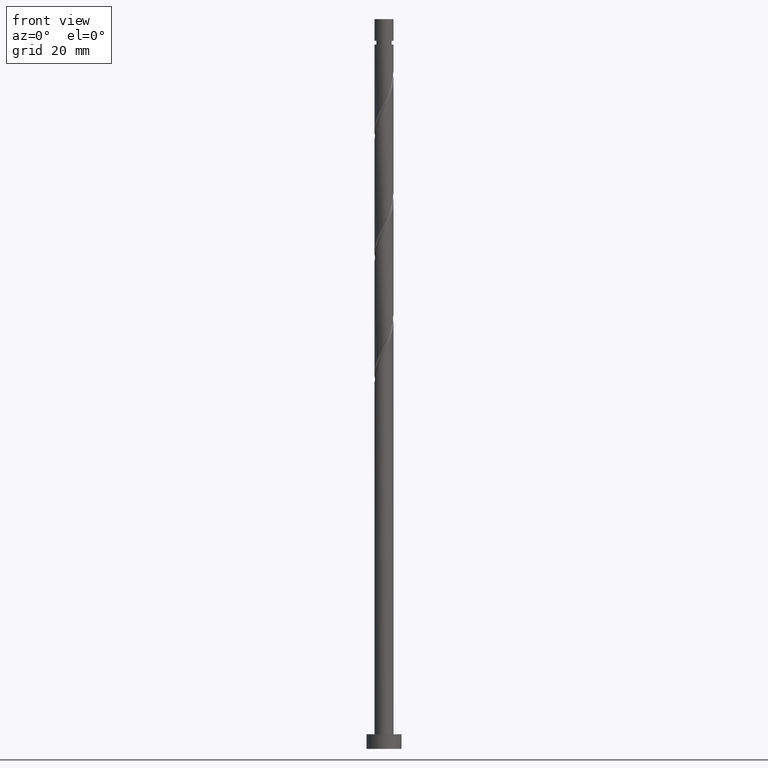
[diagram: clean part render]
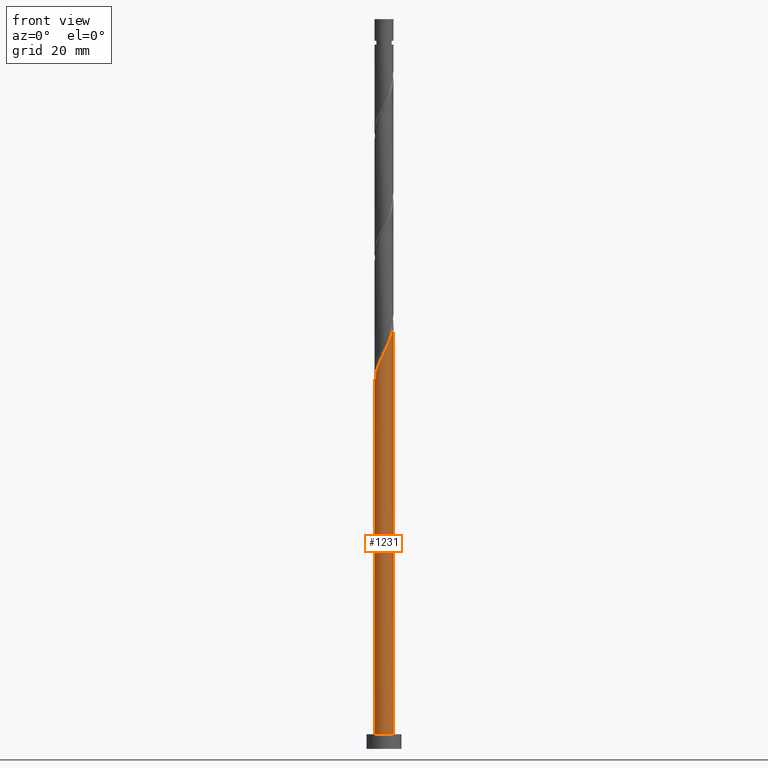
[diagram: same view with one face highlighted and labeled with its STEP entity id]
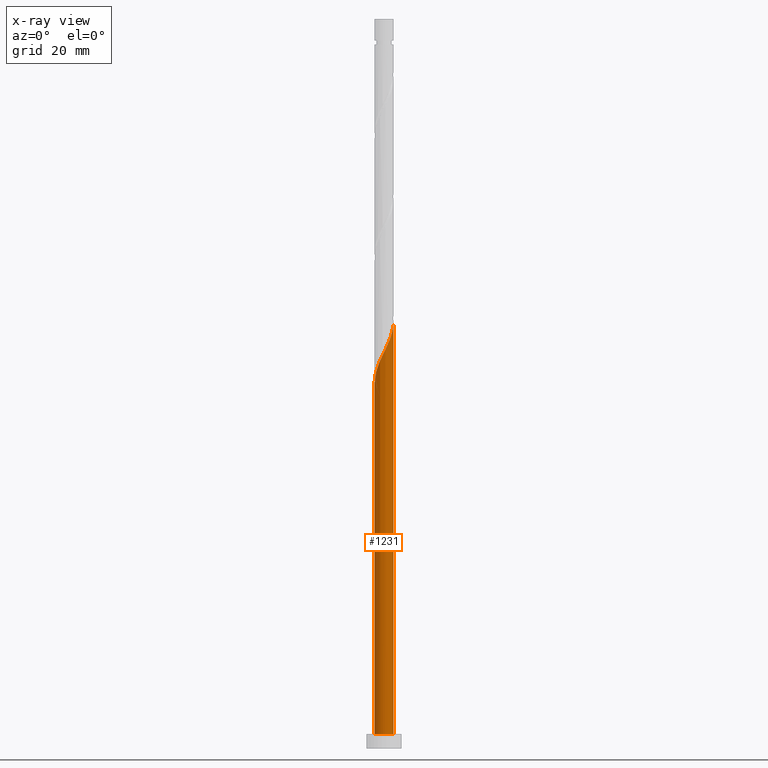
[diagram: x-ray of the same camera — body ghosted, the highlighted face saturated]
A machine part, front view. The second image highlights one B-rep face of the part: STEP entity #1231.
The next image is the same camera in x-ray: the body ghosted, the highlighted face saturated — about 0% of this face is hidden behind the body in this view.
In plain terms, the highlighted cylindrical surface (edge-blend (fillet) strip) has radius 3.25 mm, axis along (-0, -0, -1).
Its self-contained STEP definition (entity closure, byte-faithful):
#21 = CARTESIAN_POINT ( 'NONE',  ( -3.250000000000004441, -2.318170472659416436E-15, 125.3585834308545088 ) ) ;
#32 = CARTESIAN_POINT ( 'NONE',  ( 2.596138880627126166, -1.955137568688240179, 141.9108642811054040 ) ) ;
#35 = EDGE_LOOP ( 'NONE', ( #1417, #638, #1752, #1036 ) ) ;
#41 = CARTESIAN_POINT ( 'NONE',  ( 3.250000000000000444, 3.980102097228898231E-16, 250.0000000000000000 ) ) ;
#97 = CARTESIAN_POINT ( 'NONE',  ( -3.083821650335326847, -1.025935684593890285, 127.4877873580284557 ) ) ;
#115 = CARTESIAN_POINT ( 'NONE',  ( -3.250000000000004441, -2.318170472659416436E-15, 125.3585834308545088 ) ) ;
#125 = CARTESIAN_POINT ( 'NONE',  ( -0.9074818488964577767, -3.120733358350805897, 133.8980437682849072 ) ) ;
#135 = CARTESIAN_POINT ( 'NONE',  ( -1.286407482375277800, -3.010545112519593669, 133.0967617170028348 ) ) ;
#137 =( BOUNDED_CURVE ( )  B_SPLINE_CURVE ( 2, ( #21, #592, #1147, #1366, #97, #1477, #667, #1805, #1650, #1340, #1078, #135, #125, #699, #1679, #277, #157, #1838, #1688, #447, #1731, #1054, #32, #1441, #185, #754, #350, #1308, #176 ),
 .UNSPECIFIED., .F., .T. ) 
 B_SPLINE_CURVE_WITH_KNOTS ( ( 3, 2, 2, 2, 2, 2, 2, 2, 2, 2, 2, 2, 2, 2, 3 ),
 ( 0.05452716259738314003, 0.05769230769230770939, 0.06730769230769229061, 0.07692307692307687184, 0.08653846153846156408, 0.09615384615384614531, 0.1057692307692307265, 0.1153846153846154188, 0.1250000000000000000, 0.1346153846153845812, 0.1442307692307692735, 0.1538461538461538547, 0.1634615384615384359, 0.1730769230769231282, 0.1795271625973832719 ),
 .UNSPECIFIED. ) 
 CURVE ( )  GEOMETRIC_REPRESENTATION_ITEM ( )  RATIONAL_B_SPLINE_CURVE ( ( 0.9061636035682909540, 0.9069090390690794923, 0.9090909090909361501, 0.9024626128164395800, 0.9090909090909361501, 0.9024626128164395800, 0.9090909090909361501, 0.9024626128164395800, 0.9090909090909361501, 0.9024626128164395800, 0.9090909090909361501, 0.9024626128164395800, 0.9090909090909361501, 0.9024626128164395800, 0.9090909090909361501, 0.9024626128164395800, 0.9090909090909361501, 0.9024626128164395800, 0.9090909090909361501, 0.9024626128164395800, 0.9090909090909361501, 0.9024626128164395800, 0.9090909090909361501, 0.9024626128164395800, 0.9090909090909361501, 0.9024626128164395800, 0.9090909090909361501, 0.9046444828382962378, 0.9061636035682908430 ) ) 
 REPRESENTATION_ITEM ( '' )  );
#157 = CARTESIAN_POINT ( 'NONE',  ( 0.6467418341193050813, -3.185000000000004050, 137.1031719734130547 ) ) ;
#176 = CARTESIAN_POINT ( 'NONE',  ( 3.250000000000004885, 1.869492316660819541E-15, 146.1919167641878516 ) ) ;
#185 = CARTESIAN_POINT ( 'NONE',  ( 2.988594849070724813, -1.277028123460074438, 143.5134283836694635 ) ) ;
#234 = AXIS2_PLACEMENT_3D ( 'NONE', #428, #404, #1535 ) ;
#243 = VERTEX_POINT ( 'NONE', #455 ) ;
#277 = CARTESIAN_POINT ( 'NONE',  ( 0.2600128175564035971, -3.263528676131572936, 136.3018899221310107 ) ) ;
#288 = DIRECTION ( 'NONE',  ( -0.000000000000000000, -0.000000000000000000, -1.000000000000000000 ) ) ;
#350 = CARTESIAN_POINT ( 'NONE',  ( 3.207364547986609082, -0.5247024455047716307, 145.1159924862336368 ) ) ;
#404 = DIRECTION ( 'NONE',  ( -0.000000000000000000, -0.000000000000000000, -1.000000000000000000 ) ) ;
#428 = CARTESIAN_POINT ( 'NONE',  ( 0.000000000000000000, 0.000000000000000000, 250.0000000000000000 ) ) ;
#447 = CARTESIAN_POINT ( 'NONE',  ( 1.746867314480051947, -2.768877149825894612, 139.5070181272592436 ) ) ;
#455 = CARTESIAN_POINT ( 'NONE',  ( 3.250000000000004441, 1.869492316660819541E-15, 146.1919167641878516 ) ) ;
#546 = CYLINDRICAL_SURFACE ( 'NONE', #234, 3.250000000000000444 ) ;
#592 = CARTESIAN_POINT ( 'NONE',  ( -3.250000000000004885, -0.1292626735944904792, 125.6227543464874827 ) ) ;
#638 = ORIENTED_EDGE ( 'NONE', *, *, #1573, .F. ) ;
#667 = CARTESIAN_POINT ( 'NONE',  ( -2.748688917919491992, -1.734130684956183721, 129.0903514605925579 ) ) ;
#687 = FACE_OUTER_BOUND ( 'NONE', #35, .T. ) ;
#699 = CARTESIAN_POINT ( 'NONE',  ( -0.5285562154176376426, -3.230921604182017681, 134.6993258195669227 ) ) ;
#701 = CARTESIAN_POINT ( 'NONE',  ( 0.000000000000000000, 0.000000000000000000, 5.000000000000000000 ) ) ;
#728 = VERTEX_POINT ( 'NONE', #115 ) ;
#744 = LINE ( 'NONE', #41, #1407 ) ;
#754 = CARTESIAN_POINT ( 'NONE',  ( 3.143654136451849102, -0.9141470098380762854, 144.3147104349514791 ) ) ;
#779 = EDGE_CURVE ( 'NONE', #869, #1132, #1405, .T. ) ;
#869 = VERTEX_POINT ( 'NONE', #1733 ) ;
#883 = VECTOR ( 'NONE', #288, 1000.000000000000000 ) ;
#913 = AXIS2_PLACEMENT_3D ( 'NONE', #701, #1691, #1123 ) ;
#1036 = ORIENTED_EDGE ( 'NONE', *, *, #779, .T. ) ;
#1054 = CARTESIAN_POINT ( 'NONE',  ( 2.358742199564652697, -2.270365900294404771, 141.1095822298233315 ) ) ;
#1078 = CARTESIAN_POINT ( 'NONE',  ( -1.627952452366745240, -2.812875897161680516, 132.2954796657207908 ) ) ;
#1123 = DIRECTION ( 'NONE',  ( 1.000000000000000000, 0.000000000000000000, 0.000000000000000000 ) ) ;
#1132 = VERTEX_POINT ( 'NONE', #1265 ) ;
#1147 = CARTESIAN_POINT ( 'NONE',  ( -3.239733877669285889, -0.2581170313674810979, 125.8852232554643393 ) ) ;
#1231 = ADVANCED_FACE ( 'NONE', ( #687 ), #546, .T. ) ;
#1265 = CARTESIAN_POINT ( 'NONE',  ( 3.250000000000000444, 3.980102097228898231E-16, 5.000000000000000000 ) ) ;
#1272 = LINE ( 'NONE', #1410, #883 ) ;
#1308 = CARTESIAN_POINT ( 'NONE',  ( 3.250000000000004441, -0.2640834252453994058, 145.6522160268395680 ) ) ;
#1340 = CARTESIAN_POINT ( 'NONE',  ( -1.969497422358212013, -2.615206681803768252, 131.4941976144387183 ) ) ;
#1366 = CARTESIAN_POINT ( 'NONE',  ( -3.208392795817203602, -0.6514919439064305040, 126.6865053067464117 ) ) ;
#1384 = EDGE_CURVE ( 'NONE', #728, #869, #1272, .T. ) ;
#1405 = CIRCLE ( 'NONE', #913, 3.250000000000000444 ) ;
#1407 = VECTOR ( 'NONE', #1463, 1000.000000000000000 ) ;
#1410 = CARTESIAN_POINT ( 'NONE',  ( -3.250000000000000444, 0.000000000000000000, 250.0000000000000000 ) ) ;
#1417 = ORIENTED_EDGE ( 'NONE', *, *, #1630, .F. ) ;
#1441 = CARTESIAN_POINT ( 'NONE',  ( 2.833535561689600968, -1.639909237082075588, 142.7121463323874480 ) ) ;
#1463 = DIRECTION ( 'NONE',  ( -0.000000000000000000, -0.000000000000000000, -1.000000000000000000 ) ) ;
#1477 = CARTESIAN_POINT ( 'NONE',  ( -2.959250504853449648, -1.400379425281350398, 128.2890694093104855 ) ) ;
#1535 = DIRECTION ( 'NONE',  ( -1.000000000000000000, 0.000000000000000000, 0.000000000000000000 ) ) ;
#1573 = EDGE_CURVE ( 'NONE', #728, #243, #137, .T. ) ;
#1630 = EDGE_CURVE ( 'NONE', #243, #1132, #744, .T. ) ;
#1650 = CARTESIAN_POINT ( 'NONE',  ( -2.253812376671872730, -2.341544313217394535, 130.6929155631566744 ) ) ;
#1679 = CARTESIAN_POINT ( 'NONE',  ( -0.1342716989306171060, -3.247225140156795309, 135.5006078708489667 ) ) ;
#1688 = CARTESIAN_POINT ( 'NONE',  ( 1.390169082581128368, -2.937674236847165776, 138.7057360759771996 ) ) ;
#1691 = DIRECTION ( 'NONE',  ( 0.000000000000000000, 0.000000000000000000, 1.000000000000000000 ) ) ;
#1731 = CARTESIAN_POINT ( 'NONE',  ( 2.052804757022352433, -2.519621525060149914, 140.3083001785412591 ) ) ;
#1733 = CARTESIAN_POINT ( 'NONE',  ( -3.250000000000000444, 0.000000000000000000, 5.000000000000000000 ) ) ;
#1752 = ORIENTED_EDGE ( 'NONE', *, *, #1384, .T. ) ;
#1805 = CARTESIAN_POINT ( 'NONE',  ( -2.538127330985535224, -2.067881944631018598, 129.8916335118745735 ) ) ;
#1838 = CARTESIAN_POINT ( 'NONE',  ( 1.033470850682205233, -3.106471323868436052, 137.9044540246951556 ) ) ;